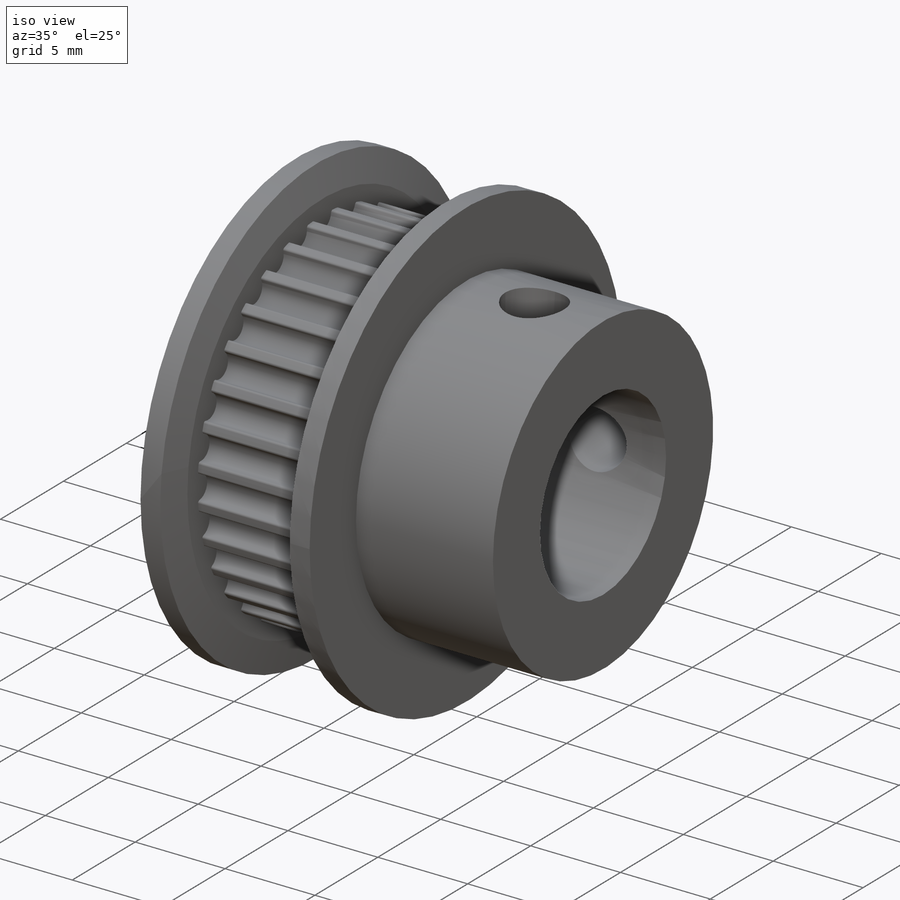
[diagram: iso view]
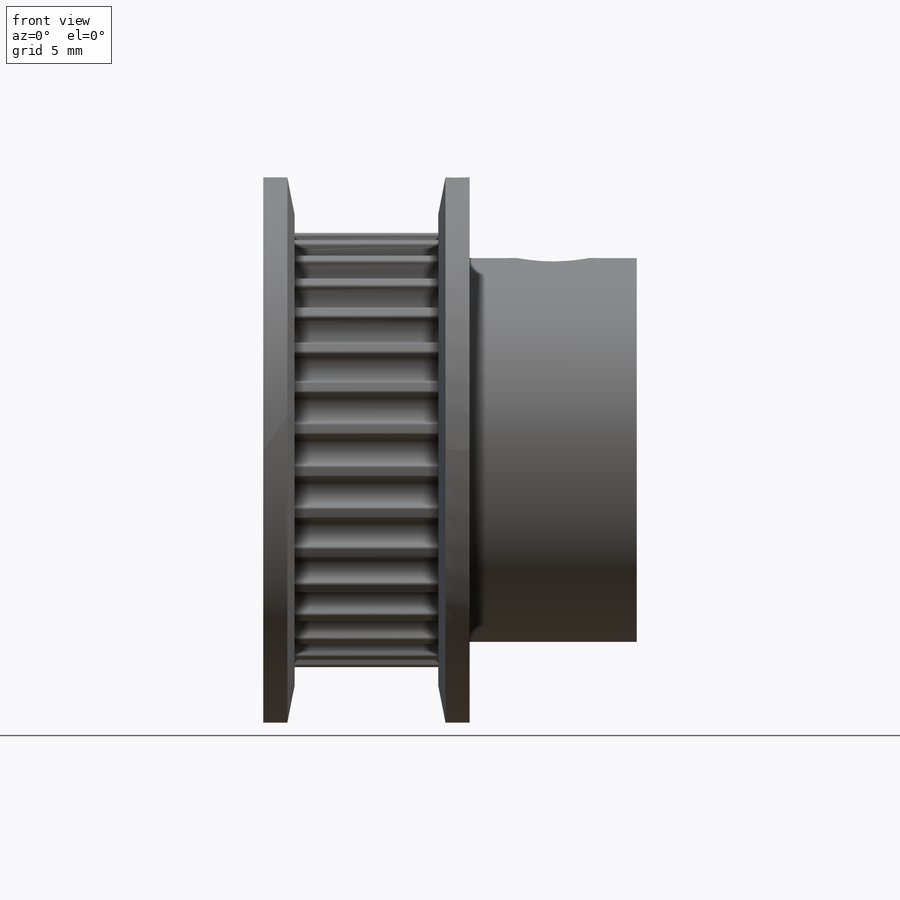
[diagram: front view]
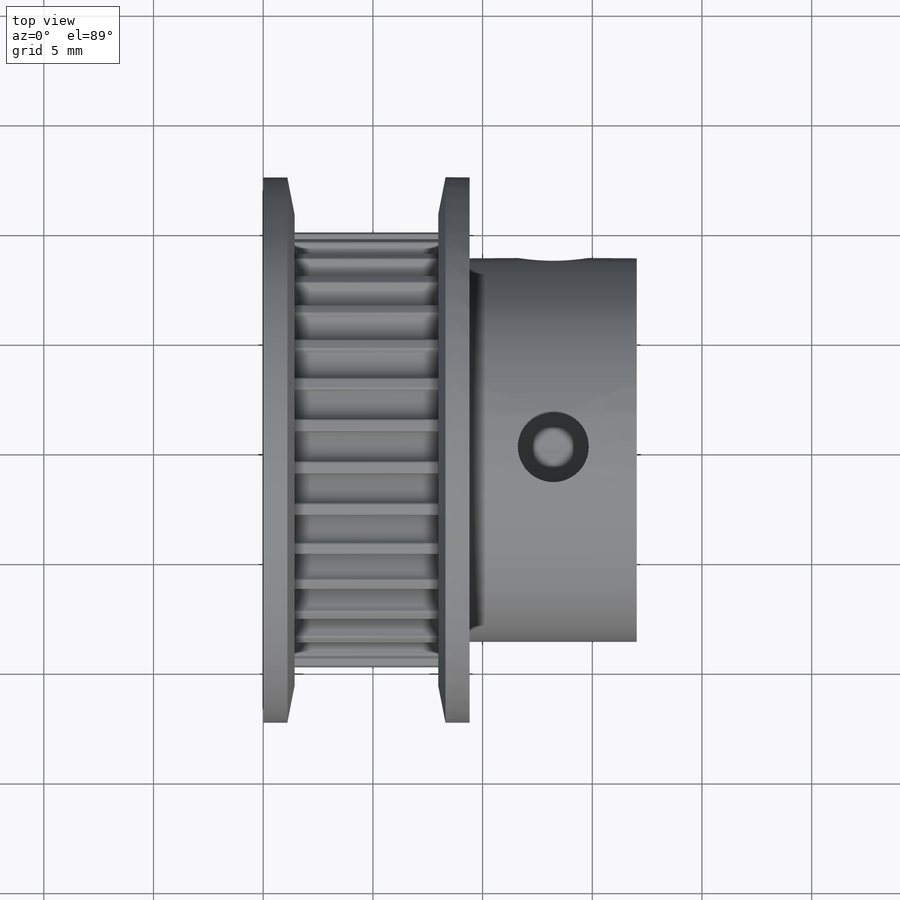
[diagram: top view]
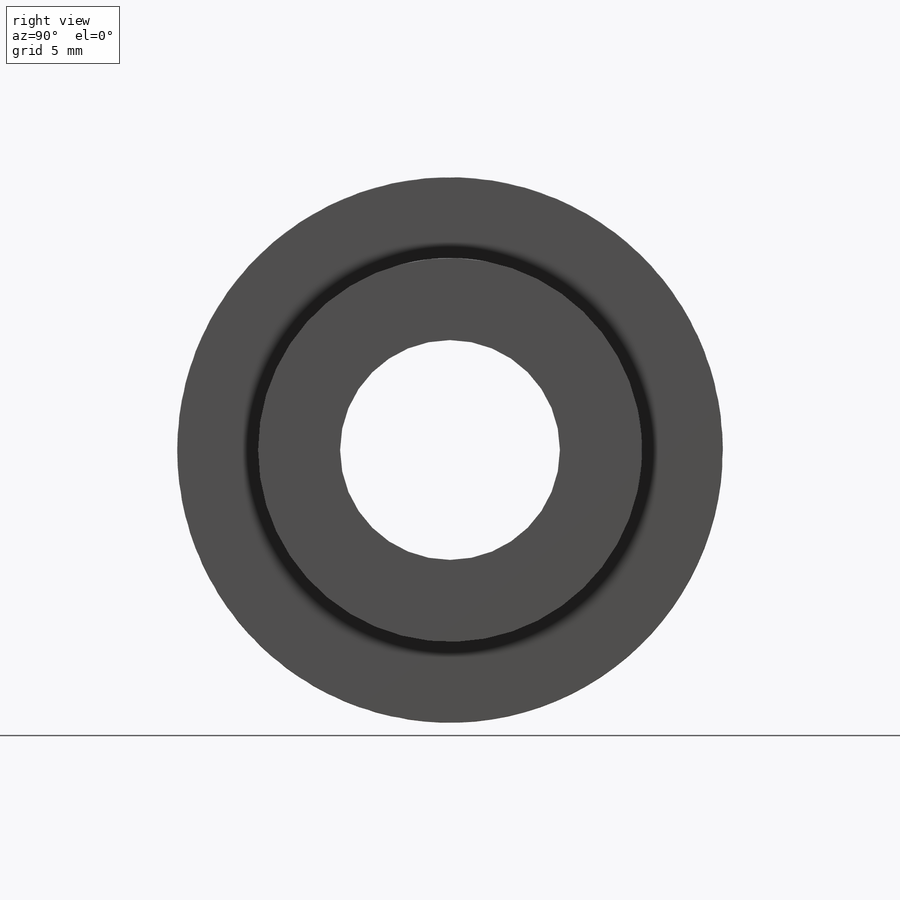
[diagram: right view]
SOLIDWORKS PART (.sldprt)
format: sldprt  version: not decoded by parser v0  size: 595,456 bytes
history: native  units: mm
features: sketch x5, plane x3, revolve x2, cut_extrude x2, pattern_circular x2, material x1, cut_revolve x1 (+13 scaffold rows collapsed)
feature tree (29):
  scaffold x13  (default folders/planes/origin — collapsed)
  material  "Material <not specified>"
  plane  "Plane1"
  sketch  "Sketch1"  dims[D1=6.55mm D2=8.75mm D3=1.43mm D4=9.05mm D5=~10.088071mm]
  revolve  "Revolve1"  Angle=360deg
  sketch  "Sketch2"  dims[D2=0.675mm D1=9.856mm D3=9.931mm D4=9.931mm D5=~1.901817mm]
  cut_extrude  "Cut-Extrude1"  [1 undecoded]
  pattern_circular  "CirPattern1"  Count=32 Angle=360deg
  sketch  "Sketch34"  dims[c1.D1=1.43mm c1.D2=12.435mm c1.D3=1.1mm c1.D4=10.75mm c1.D5=0.8mm c2.D4=10.75mm c2.D2=12.435mm c3.D4=10.75mm c3.D5=1.43mm]
  revolve  "Revolve2"  Angle=360deg
  sketch  "Sketch39"  dims[D1=10.02mm]
  cut_extrude  "Cut-Extrude2"  [1 undecoded]
  plane  "Plane39"
  sketch  "Sketch37"
  cut_revolve  "Cut-Revolve2"  Angle=360deg
  pattern_circular  "CirPattern2"  Count=2 Angle=90deg
  plane  "Plane40"
decode coverage: 9 of 12 modeling features carry decoded parameters
note: ~ marks probable driven/reference dimensions
note: 2 parameter values undecoded
note: suppression state not decoded; provenance and decode notes live in map.json
